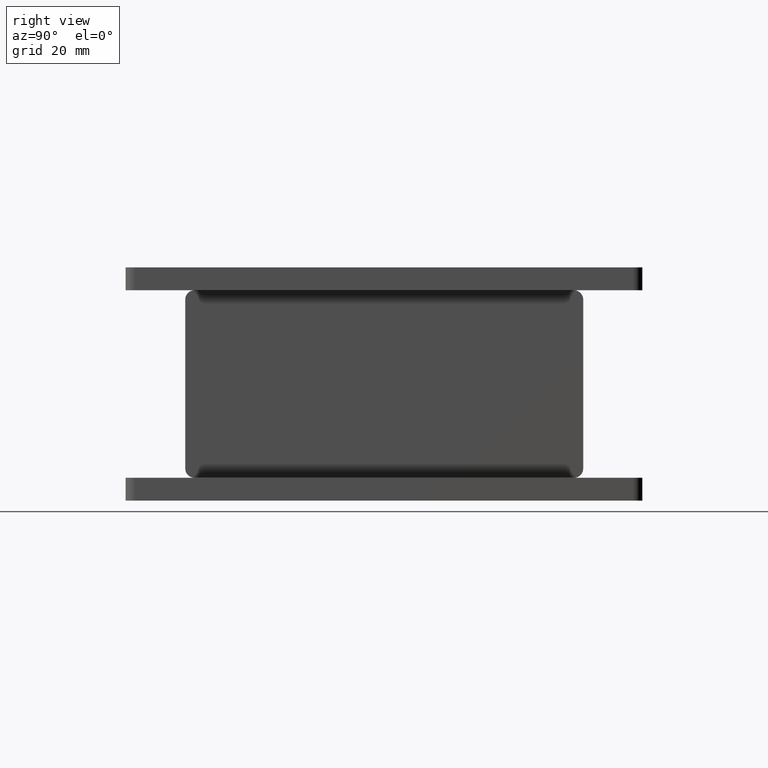
[diagram: clean part render]
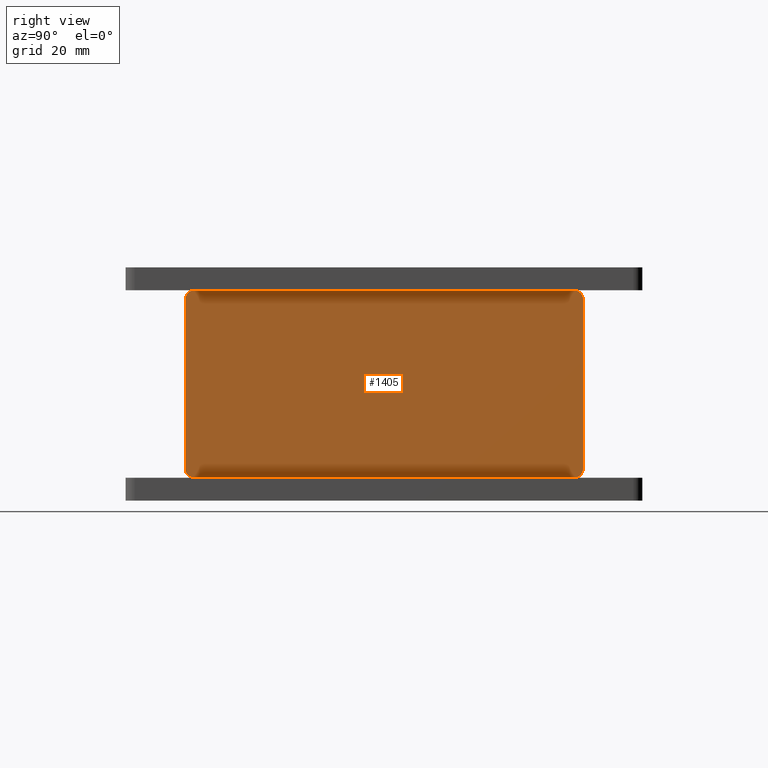
[diagram: same view with one face highlighted and labeled with its STEP entity id]
A machine part, right view. The second image highlights one B-rep face of the part: STEP entity #1405.
In plain terms, the highlighted planar face has unit normal (-1, 0, 0).
Its self-contained STEP definition (entity closure, byte-faithful):
#4 = DIRECTION ( 'NONE',  ( -0.000000000000000000, -0.000000000000000000, 1.000000000000000000 ) ) ;
#6 = EDGE_CURVE ( 'NONE', #640, #1868, #1774, .T. ) ;
#8 = DIRECTION ( 'NONE',  ( -1.000000000000000000, 0.000000000000000000, 0.000000000000000000 ) ) ;
#10 = DIRECTION ( 'NONE',  ( 1.000000000000000000, 0.000000000000000000, 0.000000000000000000 ) ) ;
#18 = CARTESIAN_POINT ( 'NONE',  ( 22.50000000000000355, -31.50000000000001421, 0.000000000000000000 ) ) ;
#22 = EDGE_CURVE ( 'NONE', #1119, #1836, #433, .T. ) ;
#34 = VERTEX_POINT ( 'NONE', #1501 ) ;
#56 = CARTESIAN_POINT ( 'NONE',  ( 22.50000000000000355, -30.50000000000001421, 0.000000000000000000 ) ) ;
#67 = VERTEX_POINT ( 'NONE', #657 ) ;
#71 = ORIENTED_EDGE ( 'NONE', *, *, #22, .T. ) ;
#112 = CARTESIAN_POINT ( 'NONE',  ( -23.50000000000000355, -31.50000000000001421, 0.000000000000000000 ) ) ;
#114 = CARTESIAN_POINT ( 'NONE',  ( -23.50000000000000355, -22.50000000000001776, 0.000000000000000000 ) ) ;
#131 = ORIENTED_EDGE ( 'NONE', *, *, #1035, .T. ) ;
#135 = DIRECTION ( 'NONE',  ( -1.000000000000000000, 0.000000000000000000, 0.000000000000000000 ) ) ;
#156 = CARTESIAN_POINT ( 'NONE',  ( 23.50000000000000355, -31.50000000000001421, 0.000000000000000000 ) ) ;
#157 = CARTESIAN_POINT ( 'NONE',  ( 23.50000000000000355, 31.49999999999997158, 0.000000000000000000 ) ) ;
#161 = VERTEX_POINT ( 'NONE', #1733 ) ;
#164 = DIRECTION ( 'NONE',  ( 1.000000000000000000, 0.000000000000000000, 0.000000000000000000 ) ) ;
#178 = EDGE_CURVE ( 'NONE', #661, #67, #1779, .T. ) ;
#180 = EDGE_CURVE ( 'NONE', #1608, #1242, #1573, .T. ) ;
#192 = ORIENTED_EDGE ( 'NONE', *, *, #821, .T. ) ;
#195 = CARTESIAN_POINT ( 'NONE',  ( -18.50000000000000355, -41.50000000000001421, 0.000000000000000000 ) ) ;
#203 = VERTEX_POINT ( 'NONE', #680 ) ;
#205 = EDGE_CURVE ( 'NONE', #1129, #1242, #2274, .T. ) ;
#216 = ORIENTED_EDGE ( 'NONE', *, *, #532, .F. ) ;
#238 = CARTESIAN_POINT ( 'NONE',  ( 18.50000000000000355, -41.50000000000001421, 0.000000000000000000 ) ) ;
#262 = VERTEX_POINT ( 'NONE', #1807 ) ;
#266 = ORIENTED_EDGE ( 'NONE', *, *, #1936, .T. ) ;
#269 = EDGE_CURVE ( 'NONE', #759, #1205, #597, .T. ) ;
#274 = VERTEX_POINT ( 'NONE', #1997 ) ;
#280 = DIRECTION ( 'NONE',  ( -1.000000000000000000, 0.000000000000000000, 0.000000000000000000 ) ) ;
#283 = CIRCLE ( 'NONE', #1949, 1.000000000000000888 ) ;
#285 = ORIENTED_EDGE ( 'NONE', *, *, #205, .T. ) ;
#289 = CIRCLE ( 'NONE', #1156, 1.000000000000000888 ) ;
#296 = CARTESIAN_POINT ( 'NONE',  ( 23.50000000000000355, 22.49999999999997158, 0.000000000000000000 ) ) ;
#302 = EDGE_CURVE ( 'NONE', #757, #67, #283, .T. ) ;
#316 = CARTESIAN_POINT ( 'NONE',  ( -23.50000000000000355, 22.49999999999997158, 0.000000000000000000 ) ) ;
#325 = LINE ( 'NONE', #687, #961 ) ;
#346 = VERTEX_POINT ( 'NONE', #1960 ) ;
#356 = DIRECTION ( 'NONE',  ( -0.000000000000000000, -0.000000000000000000, 1.000000000000000000 ) ) ;
#359 = DIRECTION ( 'NONE',  ( -0.000000000000000000, -0.000000000000000000, -1.000000000000000000 ) ) ;
#363 = LINE ( 'NONE', #1086, #1782 ) ;
#365 = EDGE_CURVE ( 'NONE', #839, #1358, #1075, .T. ) ;
#367 = CARTESIAN_POINT ( 'NONE',  ( 20.50000000000000355, 31.49999999999996447, 0.000000000000000000 ) ) ;
#379 = EDGE_CURVE ( 'NONE', #2213, #1608, #2097, .T. ) ;
#384 = LINE ( 'NONE', #2176, #1065 ) ;
#389 = CIRCLE ( 'NONE', #1705, 2.000000000000001776 ) ;
#391 = CARTESIAN_POINT ( 'NONE',  ( 20.50000000000000355, -43.50000000000002132, 0.000000000000000000 ) ) ;
#392 = CIRCLE ( 'NONE', #1743, 2.000000000000001776 ) ;
#403 = ORIENTED_EDGE ( 'NONE', *, *, #1772, .T. ) ;
#422 = ORIENTED_EDGE ( 'NONE', *, *, #2208, .T. ) ;
#433 = LINE ( 'NONE', #813, #954 ) ;
#459 = CARTESIAN_POINT ( 'NONE',  ( -20.50000000000000355, 41.49999999999997158, 0.000000000000000000 ) ) ;
#475 = CARTESIAN_POINT ( 'NONE',  ( 20.50000000000000355, 41.49999999999997158, 0.000000000000000000 ) ) ;
#492 = ORIENTED_EDGE ( 'NONE', *, *, #1943, .T. ) ;
#496 = EDGE_CURVE ( 'NONE', #636, #1695, #2136, .T. ) ;
#498 = FACE_OUTER_BOUND ( 'NONE', #2173, .T. ) ;
#505 = EDGE_CURVE ( 'NONE', #2213, #1291, #1697, .T. ) ;
#520 = VECTOR ( 'NONE', #1553, 1000.000000000000000 ) ;
#532 = EDGE_CURVE ( 'NONE', #1686, #262, #1560, .T. ) ;
#534 = EDGE_CURVE ( 'NONE', #1836, #1296, #389, .T. ) ;
#567 = ORIENTED_EDGE ( 'NONE', *, *, #1578, .F. ) ;
#569 = DIRECTION ( 'NONE',  ( -0.000000000000000000, -0.000000000000000000, 1.000000000000000000 ) ) ;
#597 = LINE ( 'NONE', #391, #1742 ) ;
#600 = ORIENTED_EDGE ( 'NONE', *, *, #1098, .T. ) ;
#617 = LINE ( 'NONE', #2256, #2037 ) ;
#626 = VECTOR ( 'NONE', #2305, 1000.000000000000000 ) ;
#636 = VERTEX_POINT ( 'NONE', #873 ) ;
#640 = VERTEX_POINT ( 'NONE', #842 ) ;
#651 = CARTESIAN_POINT ( 'NONE',  ( -22.50000000000000355, 31.49999999999997158, 0.000000000000000000 ) ) ;
#657 = CARTESIAN_POINT ( 'NONE',  ( -23.50000000000000355, 22.49999999999997158, 0.000000000000000000 ) ) ;
#658 = CARTESIAN_POINT ( 'NONE',  ( 20.50000000000000355, 21.49999999999997158, 0.000000000000000000 ) ) ;
#661 = VERTEX_POINT ( 'NONE', #1204 ) ;
#663 = CARTESIAN_POINT ( 'NONE',  ( 22.50000000000000355, 22.49999999999997158, 0.000000000000000000 ) ) ;
#677 = EDGE_CURVE ( 'NONE', #346, #1291, #1413, .T. ) ;
#680 = CARTESIAN_POINT ( 'NONE',  ( 22.50000000000000355, -21.50000000000001066, 0.000000000000000000 ) ) ;
#685 = EDGE_CURVE ( 'NONE', #1868, #759, #1387, .T. ) ;
#687 = CARTESIAN_POINT ( 'NONE',  ( -23.50000000000000355, 21.49999999999997158, 0.000000000000000000 ) ) ;
#697 = CIRCLE ( 'NONE', #1594, 2.000000000000001776 ) ;
#703 = CARTESIAN_POINT ( 'NONE',  ( -23.50000000000000355, 30.49999999999997158, 0.000000000000000000 ) ) ;
#723 = DIRECTION ( 'NONE',  ( 1.000000000000000000, 0.000000000000000000, 0.000000000000000000 ) ) ;
#728 = EDGE_CURVE ( 'NONE', #1229, #274, #906, .T. ) ;
#731 = CARTESIAN_POINT ( 'NONE',  ( -20.50000000000000355, 43.49999999999997868, 0.000000000000000000 ) ) ;
#739 = CARTESIAN_POINT ( 'NONE',  ( -20.50000000000000355, 21.49999999999997158, 0.000000000000000000 ) ) ;
#752 = EDGE_CURVE ( 'NONE', #1205, #1392, #697, .T. ) ;
#757 = VERTEX_POINT ( 'NONE', #1645 ) ;
#759 = VERTEX_POINT ( 'NONE', #367 ) ;
#760 = DIRECTION ( 'NONE',  ( 0.000000000000000000, -1.000000000000000000, 0.000000000000000000 ) ) ;
#764 = AXIS2_PLACEMENT_3D ( 'NONE', #1528, #1010, #280 ) ;
#777 = AXIS2_PLACEMENT_3D ( 'NONE', #2146, #1796, #8 ) ;
#789 = EDGE_CURVE ( 'NONE', #1392, #636, #1805, .T. ) ;
#794 = ORIENTED_EDGE ( 'NONE', *, *, #365, .T. ) ;
#798 = CARTESIAN_POINT ( 'NONE',  ( -23.50000000000000355, -30.50000000000001421, 0.000000000000000000 ) ) ;
#802 = CARTESIAN_POINT ( 'NONE',  ( 23.50000000000000355, 30.49999999999997158, 0.000000000000000000 ) ) ;
#810 = CARTESIAN_POINT ( 'NONE',  ( 23.50000000000000355, -22.50000000000001776, 0.000000000000000000 ) ) ;
#813 = CARTESIAN_POINT ( 'NONE',  ( -20.50000000000000355, -43.50000000000002132, 0.000000000000000000 ) ) ;
#820 = DIRECTION ( 'NONE',  ( -0.000000000000000000, -0.000000000000000000, 1.000000000000000000 ) ) ;
#821 = EDGE_CURVE ( 'NONE', #1890, #1119, #392, .T. ) ;
#832 = LINE ( 'NONE', #1897, #1600 ) ;
#837 = CARTESIAN_POINT ( 'NONE',  ( 18.49999999999998934, 43.49999999999997868, 0.000000000000000000 ) ) ;
#839 = VERTEX_POINT ( 'NONE', #2157 ) ;
#842 = CARTESIAN_POINT ( 'NONE',  ( 23.50000000000000355, 30.49999999999997158, 0.000000000000000000 ) ) ;
#855 = VECTOR ( 'NONE', #1236, 1000.000000000000000 ) ;
#867 = PLANE ( 'NONE',  #1036 ) ;
#873 = CARTESIAN_POINT ( 'NONE',  ( -18.50000000000000355, 43.49999999999997868, 0.000000000000000000 ) ) ;
#879 = VECTOR ( 'NONE', #2125, 1000.000000000000000 ) ;
#898 = DIRECTION ( 'NONE',  ( 0.000000000000000000, 1.000000000000000000, 0.000000000000000000 ) ) ;
#906 = LINE ( 'NONE', #2167, #626 ) ;
#915 = DIRECTION ( 'NONE',  ( -1.000000000000000000, 0.000000000000000000, 0.000000000000000000 ) ) ;
#919 = DIRECTION ( 'NONE',  ( -0.000000000000000000, -0.000000000000000000, -1.000000000000000000 ) ) ;
#929 = CARTESIAN_POINT ( 'NONE',  ( 18.50000000000000355, 41.49999999999997158, 0.000000000000000000 ) ) ;
#944 = EDGE_CURVE ( 'NONE', #1245, #1890, #1508, .T. ) ;
#954 = VECTOR ( 'NONE', #1859, 1000.000000000000000 ) ;
#959 = CIRCLE ( 'NONE', #1668, 1.000000000000000888 ) ;
#961 = VECTOR ( 'NONE', #164, 1000.000000000000000 ) ;
#970 = DIRECTION ( 'NONE',  ( -0.000000000000000000, -0.000000000000000000, 1.000000000000000000 ) ) ;
#974 = DIRECTION ( 'NONE',  ( -1.000000000000000000, 0.000000000000000000, 0.000000000000000000 ) ) ;
#981 = ORIENTED_EDGE ( 'NONE', *, *, #2211, .T. ) ;
#983 = ORIENTED_EDGE ( 'NONE', *, *, #1907, .F. ) ;
#989 = EDGE_CURVE ( 'NONE', #1695, #274, #384, .T. ) ;
#994 = VECTOR ( 'NONE', #1257, 1000.000000000000000 ) ;
#999 = CARTESIAN_POINT ( 'NONE',  ( -23.50000000000000355, -30.50000000000001421, 0.000000000000000000 ) ) ;
#1010 = DIRECTION ( 'NONE',  ( -0.000000000000000000, -0.000000000000000000, 1.000000000000000000 ) ) ;
#1011 = CARTESIAN_POINT ( 'NONE',  ( 20.50000000000000355, -41.50000000000001421, 0.000000000000000000 ) ) ;
#1014 = LINE ( 'NONE', #112, #520 ) ;
#1015 = DIRECTION ( 'NONE',  ( -1.000000000000000000, 0.000000000000000000, 0.000000000000000000 ) ) ;
#1035 = EDGE_CURVE ( 'NONE', #346, #1245, #1014, .T. ) ;
#1036 = AXIS2_PLACEMENT_3D ( 'NONE', #1250, #1550, #1967 ) ;
#1040 = CARTESIAN_POINT ( 'NONE',  ( -22.50000000000000355, -30.50000000000001421, 0.000000000000000000 ) ) ;
#1065 = VECTOR ( 'NONE', #760, 1000.000000000000000 ) ;
#1075 = LINE ( 'NONE', #1470, #1625 ) ;
#1086 = CARTESIAN_POINT ( 'NONE',  ( 23.50000000000000355, 21.49999999999997158, 0.000000000000000000 ) ) ;
#1095 = VERTEX_POINT ( 'NONE', #18 ) ;
#1098 = EDGE_CURVE ( 'NONE', #1095, #262, #289, .T. ) ;
#1119 = VERTEX_POINT ( 'NONE', #1309 ) ;
#1127 = DIRECTION ( 'NONE',  ( -1.000000000000000000, 0.000000000000000000, 0.000000000000000000 ) ) ;
#1129 = VERTEX_POINT ( 'NONE', #739 ) ;
#1152 = VERTEX_POINT ( 'NONE', #1260 ) ;
#1154 = EDGE_CURVE ( 'NONE', #1152, #1358, #363, .T. ) ;
#1156 = AXIS2_PLACEMENT_3D ( 'NONE', #56, #4, #1127 ) ;
#1158 = CIRCLE ( 'NONE', #1448, 1.000000000000000888 ) ;
#1184 = CARTESIAN_POINT ( 'NONE',  ( -20.50000000000000355, -31.50000000000001421, 0.000000000000000000 ) ) ;
#1187 = ORIENTED_EDGE ( 'NONE', *, *, #534, .T. ) ;
#1204 = CARTESIAN_POINT ( 'NONE',  ( -23.50000000000000355, 30.49999999999997158, 0.000000000000000000 ) ) ;
#1205 = VERTEX_POINT ( 'NONE', #475 ) ;
#1229 = VERTEX_POINT ( 'NONE', #651 ) ;
#1236 = DIRECTION ( 'NONE',  ( -1.000000000000000000, 0.000000000000000000, 0.000000000000000000 ) ) ;
#1242 = VERTEX_POINT ( 'NONE', #1513 ) ;
#1245 = VERTEX_POINT ( 'NONE', #1184 ) ;
#1250 = CARTESIAN_POINT ( 'NONE',  ( 0.000000000000000000, 0.000000000000000000, 0.000000000000000000 ) ) ;
#1257 = DIRECTION ( 'NONE',  ( 1.000000000000000000, 0.000000000000000000, 0.000000000000000000 ) ) ;
#1259 = AXIS2_PLACEMENT_3D ( 'NONE', #1450, #359, #723 ) ;
#1260 = CARTESIAN_POINT ( 'NONE',  ( 22.50000000000000355, 21.49999999999997158, 0.000000000000000000 ) ) ;
#1265 = DIRECTION ( 'NONE',  ( -1.000000000000000000, 0.000000000000000000, 0.000000000000000000 ) ) ;
#1266 = EDGE_CURVE ( 'NONE', #640, #34, #2126, .T. ) ;
#1291 = VERTEX_POINT ( 'NONE', #999 ) ;
#1292 = ORIENTED_EDGE ( 'NONE', *, *, #178, .T. ) ;
#1296 = VERTEX_POINT ( 'NONE', #1011 ) ;
#1309 = CARTESIAN_POINT ( 'NONE',  ( -18.50000000000000355, -43.50000000000002132, 0.000000000000000000 ) ) ;
#1336 = CARTESIAN_POINT ( 'NONE',  ( -23.50000000000000355, -22.50000000000001776, 0.000000000000000000 ) ) ;
#1342 = VECTOR ( 'NONE', #1797, 1000.000000000000000 ) ;
#1345 = ORIENTED_EDGE ( 'NONE', *, *, #496, .T. ) ;
#1358 = VERTEX_POINT ( 'NONE', #658 ) ;
#1363 = DIRECTION ( 'NONE',  ( 0.000000000000000000, 1.000000000000000000, 0.000000000000000000 ) ) ;
#1366 = ORIENTED_EDGE ( 'NONE', *, *, #752, .T. ) ;
#1387 = LINE ( 'NONE', #157, #1481 ) ;
#1392 = VERTEX_POINT ( 'NONE', #837 ) ;
#1405 = ADVANCED_FACE ( 'NONE', ( #498 ), #867, .F. ) ;
#1413 = CIRCLE ( 'NONE', #1444, 1.000000000000000888 ) ;
#1421 = CARTESIAN_POINT ( 'NONE',  ( -23.50000000000000355, -21.50000000000001066, 0.000000000000000000 ) ) ;
#1424 = ORIENTED_EDGE ( 'NONE', *, *, #989, .T. ) ;
#1444 = AXIS2_PLACEMENT_3D ( 'NONE', #1040, #1771, #1906 ) ;
#1448 = AXIS2_PLACEMENT_3D ( 'NONE', #663, #820, #1903 ) ;
#1450 = CARTESIAN_POINT ( 'NONE',  ( -22.50000000000000355, -22.50000000000001421, 0.000000000000000000 ) ) ;
#1469 = CARTESIAN_POINT ( 'NONE',  ( -22.50000000000000355, -21.50000000000001066, 0.000000000000000000 ) ) ;
#1470 = CARTESIAN_POINT ( 'NONE',  ( 20.50000000000000355, -43.50000000000002132, 0.000000000000000000 ) ) ;
#1481 = VECTOR ( 'NONE', #135, 1000.000000000000000 ) ;
#1501 = CARTESIAN_POINT ( 'NONE',  ( 23.50000000000000355, 22.49999999999997158, 0.000000000000000000 ) ) ;
#1508 = LINE ( 'NONE', #1666, #1629 ) ;
#1510 = ORIENTED_EDGE ( 'NONE', *, *, #944, .T. ) ;
#1511 = DIRECTION ( 'NONE',  ( -1.000000000000000000, 0.000000000000000000, 0.000000000000000000 ) ) ;
#1513 = CARTESIAN_POINT ( 'NONE',  ( -20.50000000000000355, -21.50000000000001066, 0.000000000000000000 ) ) ;
#1528 = CARTESIAN_POINT ( 'NONE',  ( 22.50000000000000355, 30.49999999999997158, 0.000000000000000000 ) ) ;
#1538 = CARTESIAN_POINT ( 'NONE',  ( 23.50000000000000355, -22.50000000000001776, 0.000000000000000000 ) ) ;
#1550 = DIRECTION ( 'NONE',  ( 0.000000000000000000, 0.000000000000000000, -1.000000000000000000 ) ) ;
#1553 = DIRECTION ( 'NONE',  ( 1.000000000000000000, 0.000000000000000000, 0.000000000000000000 ) ) ;
#1560 = B_SPLINE_CURVE_WITH_KNOTS ( 'NONE', 1,
 ( #1538, #1842 ),
 .UNSPECIFIED., .F., .F.,
 ( 2, 2 ),
 ( 0.2000000000000001499, 0.4666666666666667851 ),
 .UNSPECIFIED. ) ;
#1573 = LINE ( 'NONE', #1421, #994 ) ;
#1578 = EDGE_CURVE ( 'NONE', #661, #1229, #959, .T. ) ;
#1579 = CARTESIAN_POINT ( 'NONE',  ( 18.49999999999998934, -43.50000000000002132, 0.000000000000000000 ) ) ;
#1589 = CARTESIAN_POINT ( 'NONE',  ( -20.50000000000000355, -41.50000000000001421, 0.000000000000000000 ) ) ;
#1594 = AXIS2_PLACEMENT_3D ( 'NONE', #929, #356, #1265 ) ;
#1600 = VECTOR ( 'NONE', #1015, 1000.000000000000000 ) ;
#1608 = VERTEX_POINT ( 'NONE', #1469 ) ;
#1622 = DIRECTION ( 'NONE',  ( 0.000000000000000000, 1.000000000000000000, 0.000000000000000000 ) ) ;
#1625 = VECTOR ( 'NONE', #1622, 1000.000000000000000 ) ;
#1629 = VECTOR ( 'NONE', #2210, 1000.000000000000000 ) ;
#1645 = CARTESIAN_POINT ( 'NONE',  ( -22.50000000000000355, 21.49999999999997158, 0.000000000000000000 ) ) ;
#1666 = CARTESIAN_POINT ( 'NONE',  ( -20.50000000000000355, -43.50000000000002132, 0.000000000000000000 ) ) ;
#1668 = AXIS2_PLACEMENT_3D ( 'NONE', #1669, #2035, #1852 ) ;
#1669 = CARTESIAN_POINT ( 'NONE',  ( -22.50000000000000355, 30.49999999999997158, 0.000000000000000000 ) ) ;
#1686 = VERTEX_POINT ( 'NONE', #810 ) ;
#1695 = VERTEX_POINT ( 'NONE', #459 ) ;
#1697 = B_SPLINE_CURVE_WITH_KNOTS ( 'NONE', 1,
 ( #114, #798 ),
 .UNSPECIFIED., .F., .F.,
 ( 2, 2 ),
 ( 0.2000000000000001499, 0.4666666666666667851 ),
 .UNSPECIFIED. ) ;
#1705 = AXIS2_PLACEMENT_3D ( 'NONE', #238, #2241, #1511 ) ;
#1724 = DIRECTION ( 'NONE',  ( -1.000000000000000000, 0.000000000000000000, 0.000000000000000000 ) ) ;
#1733 = CARTESIAN_POINT ( 'NONE',  ( 20.50000000000000355, -31.50000000000001421, 0.000000000000000000 ) ) ;
#1742 = VECTOR ( 'NONE', #898, 1000.000000000000000 ) ;
#1743 = AXIS2_PLACEMENT_3D ( 'NONE', #195, #569, #915 ) ;
#1761 = ORIENTED_EDGE ( 'NONE', *, *, #505, .T. ) ;
#1762 = ORIENTED_EDGE ( 'NONE', *, *, #379, .F. ) ;
#1771 = DIRECTION ( 'NONE',  ( -0.000000000000000000, -0.000000000000000000, -1.000000000000000000 ) ) ;
#1772 = EDGE_CURVE ( 'NONE', #203, #839, #832, .T. ) ;
#1774 = CIRCLE ( 'NONE', #764, 1.000000000000000888 ) ;
#1779 = B_SPLINE_CURVE_WITH_KNOTS ( 'NONE', 1,
 ( #703, #316 ),
 .UNSPECIFIED., .F., .F.,
 ( 2, 2 ),
 ( 0.2000000000000000111, 0.4666666666666667296 ),
 .UNSPECIFIED. ) ;
#1782 = VECTOR ( 'NONE', #974, 1000.000000000000000 ) ;
#1784 = ORIENTED_EDGE ( 'NONE', *, *, #269, .T. ) ;
#1791 = ORIENTED_EDGE ( 'NONE', *, *, #1266, .F. ) ;
#1796 = DIRECTION ( 'NONE',  ( -0.000000000000000000, -0.000000000000000000, 1.000000000000000000 ) ) ;
#1797 = DIRECTION ( 'NONE',  ( -1.000000000000000000, 0.000000000000000000, 0.000000000000000000 ) ) ;
#1805 = LINE ( 'NONE', #731, #1342 ) ;
#1807 = CARTESIAN_POINT ( 'NONE',  ( 23.50000000000000355, -30.50000000000001421, 0.000000000000000000 ) ) ;
#1821 = ORIENTED_EDGE ( 'NONE', *, *, #728, .F. ) ;
#1831 = CARTESIAN_POINT ( 'NONE',  ( -22.50000000000000355, 22.49999999999997158, 0.000000000000000000 ) ) ;
#1836 = VERTEX_POINT ( 'NONE', #1579 ) ;
#1842 = CARTESIAN_POINT ( 'NONE',  ( 23.50000000000000355, -30.50000000000001421, 0.000000000000000000 ) ) ;
#1843 = ORIENTED_EDGE ( 'NONE', *, *, #180, .F. ) ;
#1852 = DIRECTION ( 'NONE',  ( 1.000000000000000000, 0.000000000000000000, 0.000000000000000000 ) ) ;
#1853 = ORIENTED_EDGE ( 'NONE', *, *, #302, .F. ) ;
#1859 = DIRECTION ( 'NONE',  ( 1.000000000000000000, 0.000000000000000000, 0.000000000000000000 ) ) ;
#1868 = VERTEX_POINT ( 'NONE', #1914 ) ;
#1888 = CARTESIAN_POINT ( 'NONE',  ( -18.50000000000000355, 41.49999999999997158, 0.000000000000000000 ) ) ;
#1890 = VERTEX_POINT ( 'NONE', #1589 ) ;
#1897 = CARTESIAN_POINT ( 'NONE',  ( 23.50000000000000355, -21.50000000000001066, 0.000000000000000000 ) ) ;
#1903 = DIRECTION ( 'NONE',  ( -1.000000000000000000, 0.000000000000000000, 0.000000000000000000 ) ) ;
#1906 = DIRECTION ( 'NONE',  ( 1.000000000000000000, 0.000000000000000000, 0.000000000000000000 ) ) ;
#1907 = EDGE_CURVE ( 'NONE', #1095, #161, #2281, .T. ) ;
#1914 = CARTESIAN_POINT ( 'NONE',  ( 22.50000000000000355, 31.49999999999997158, 0.000000000000000000 ) ) ;
#1924 = CIRCLE ( 'NONE', #777, 1.000000000000000888 ) ;
#1934 = ORIENTED_EDGE ( 'NONE', *, *, #1154, .F. ) ;
#1936 = EDGE_CURVE ( 'NONE', #1686, #203, #1924, .T. ) ;
#1940 = CARTESIAN_POINT ( 'NONE',  ( -20.50000000000000355, -43.50000000000002132, 0.000000000000000000 ) ) ;
#1943 = EDGE_CURVE ( 'NONE', #757, #1129, #325, .T. ) ;
#1949 = AXIS2_PLACEMENT_3D ( 'NONE', #1831, #919, #10 ) ;
#1960 = CARTESIAN_POINT ( 'NONE',  ( -22.50000000000000355, -31.50000000000001421, 0.000000000000000000 ) ) ;
#1967 = DIRECTION ( 'NONE',  ( -1.000000000000000000, 0.000000000000000000, 0.000000000000000000 ) ) ;
#1997 = CARTESIAN_POINT ( 'NONE',  ( -20.50000000000000355, 31.49999999999997158, 0.000000000000000000 ) ) ;
#2028 = AXIS2_PLACEMENT_3D ( 'NONE', #1888, #970, #1724 ) ;
#2035 = DIRECTION ( 'NONE',  ( -0.000000000000000000, -0.000000000000000000, -1.000000000000000000 ) ) ;
#2037 = VECTOR ( 'NONE', #1363, 1000.000000000000000 ) ;
#2058 = ORIENTED_EDGE ( 'NONE', *, *, #685, .T. ) ;
#2097 = CIRCLE ( 'NONE', #1259, 1.000000000000000888 ) ;
#2125 = DIRECTION ( 'NONE',  ( 0.000000000000000000, -1.000000000000000000, 0.000000000000000000 ) ) ;
#2126 = B_SPLINE_CURVE_WITH_KNOTS ( 'NONE', 1,
 ( #802, #296 ),
 .UNSPECIFIED., .F., .F.,
 ( 2, 2 ),
 ( 0.2000000000000000111, 0.4666666666666667296 ),
 .UNSPECIFIED. ) ;
#2136 = CIRCLE ( 'NONE', #2028, 2.000000000000001776 ) ;
#2146 = CARTESIAN_POINT ( 'NONE',  ( 22.50000000000000355, -22.50000000000001421, 0.000000000000000000 ) ) ;
#2157 = CARTESIAN_POINT ( 'NONE',  ( 20.50000000000000355, -21.50000000000001066, 0.000000000000000000 ) ) ;
#2167 = CARTESIAN_POINT ( 'NONE',  ( -23.50000000000000355, 31.49999999999997158, 0.000000000000000000 ) ) ;
#2173 = EDGE_LOOP ( 'NONE', ( #1424, #1821, #567, #1292, #1853, #492, #285, #1843, #1762, #1761, #2204, #131, #1510, #192, #71, #1187, #981, #983, #600, #216, #266, #403, #794, #1934, #422, #1791, #2246, #2058, #1784, #1366, #2298, #1345 ) ) ;
#2176 = CARTESIAN_POINT ( 'NONE',  ( -20.50000000000000355, -43.50000000000002132, 0.000000000000000000 ) ) ;
#2204 = ORIENTED_EDGE ( 'NONE', *, *, #677, .F. ) ;
#2208 = EDGE_CURVE ( 'NONE', #1152, #34, #1158, .T. ) ;
#2210 = DIRECTION ( 'NONE',  ( 0.000000000000000000, -1.000000000000000000, 0.000000000000000000 ) ) ;
#2211 = EDGE_CURVE ( 'NONE', #1296, #161, #617, .T. ) ;
#2213 = VERTEX_POINT ( 'NONE', #1336 ) ;
#2241 = DIRECTION ( 'NONE',  ( -0.000000000000000000, -0.000000000000000000, 1.000000000000000000 ) ) ;
#2246 = ORIENTED_EDGE ( 'NONE', *, *, #6, .T. ) ;
#2256 = CARTESIAN_POINT ( 'NONE',  ( 20.50000000000000355, -43.50000000000002132, 0.000000000000000000 ) ) ;
#2274 = LINE ( 'NONE', #1940, #879 ) ;
#2281 = LINE ( 'NONE', #156, #855 ) ;
#2298 = ORIENTED_EDGE ( 'NONE', *, *, #789, .T. ) ;
#2305 = DIRECTION ( 'NONE',  ( 1.000000000000000000, 0.000000000000000000, 0.000000000000000000 ) ) ;